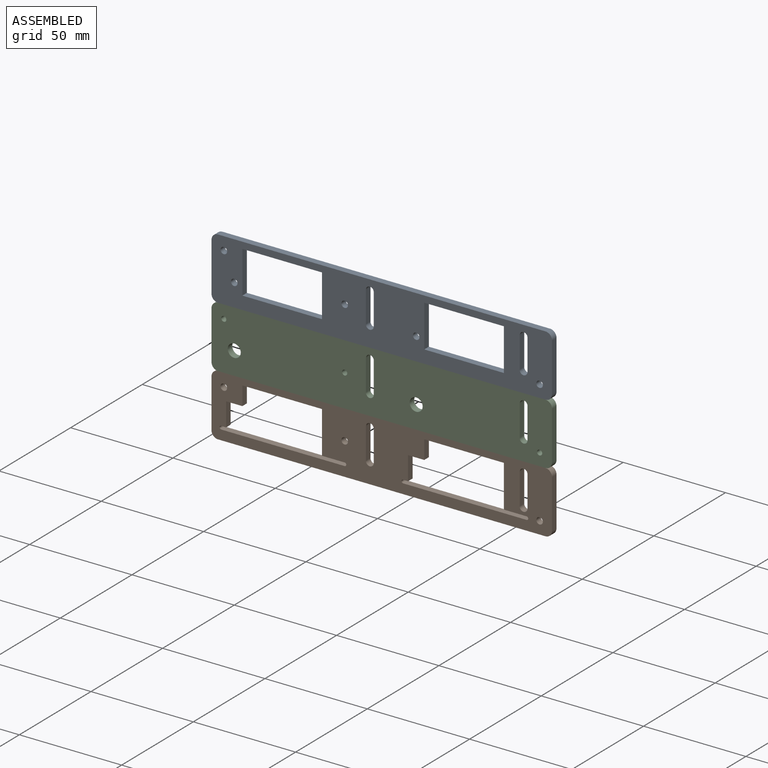
[diagram: assembled view]
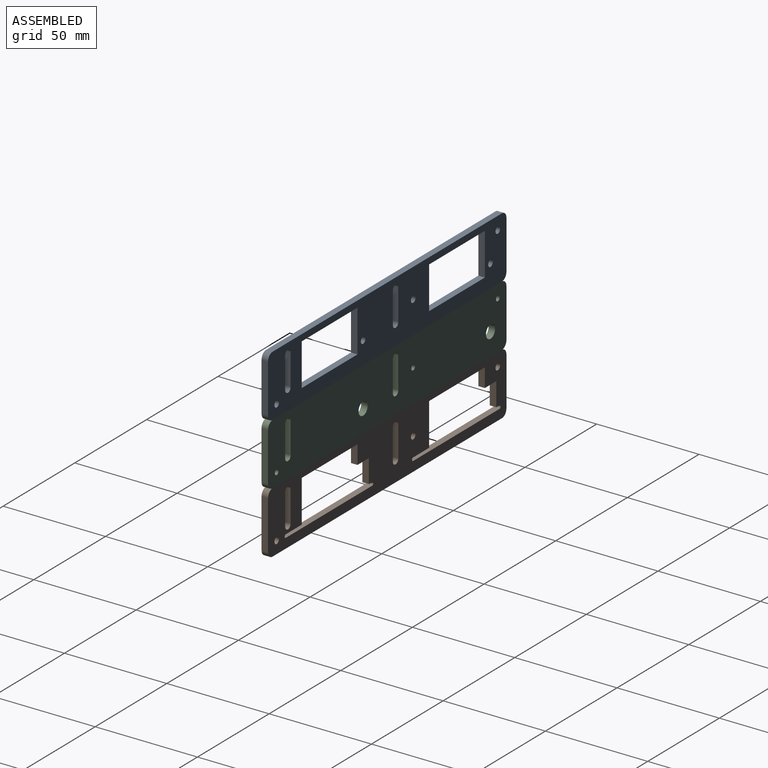
[diagram: assembled view, second angle]
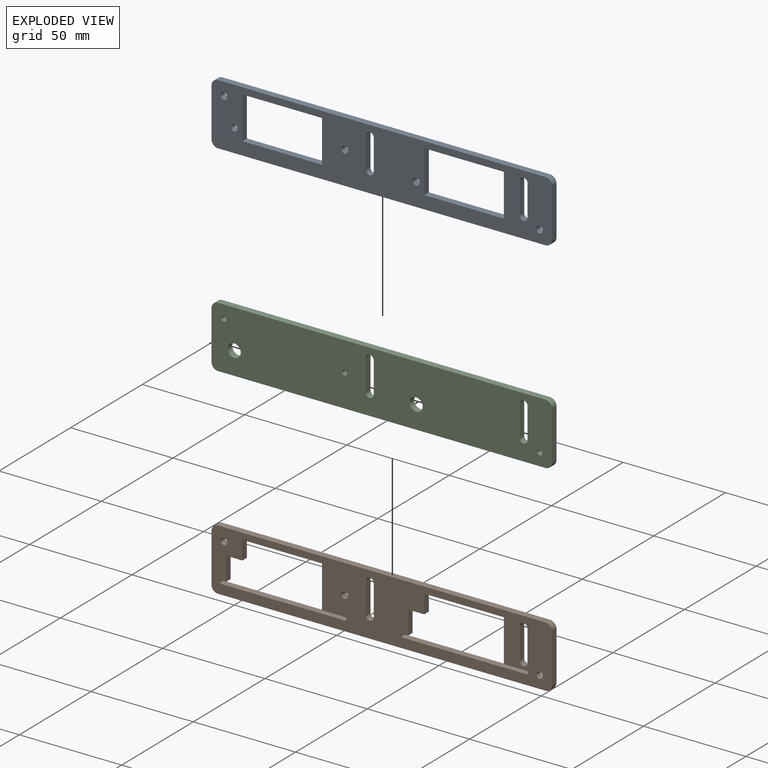
[diagram: exploded view]
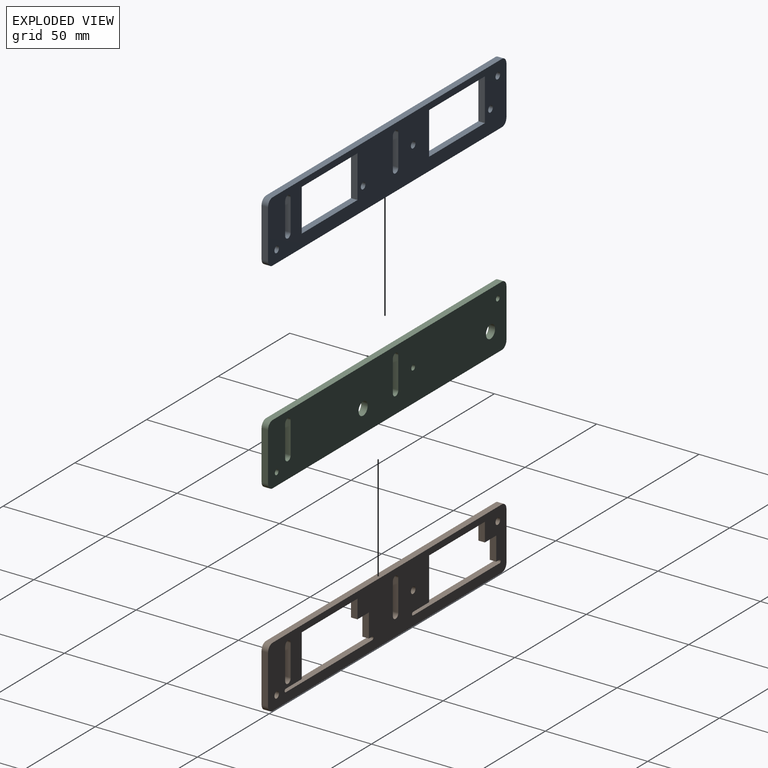
[diagram: exploded view, second angle]
ASSEMBLY  parts=3 mates=2
PART A: 31 faces, bbox 166.4x3.2x30.2 mm
  f0: cylinder r=3.17mm len=3.18mm, axis (0,1,0), area 15.8mm2, adj f1,f28,f29,f30
  f1: plane 160.01x3.18mm, normal (0,0,-1), area 508mm2, adj f0,f2,f29,f30
  f2: cylinder r=3.17mm len=3.18mm, axis (0,1,0), area 15.8mm2, adj f1,f3,f29,f30
  f3: plane 23.81x3.18mm, normal (1,0,0), area 75.6mm2, adj f2,f4,f29,f30
  f4: cylinder r=3.17mm len=3.18mm, axis (0,1,0), area 15.8mm2, adj f3,f5,f29,f30
  f5: plane 160.01x3.18mm, normal (0,0,1), area 508mm2, adj f4,f6,f29,f30
  f6: cylinder r=3.17mm len=3.18mm, axis (0,1,0), area 15.8mm2, adj f5,f28,f29,f30
  f7: cylinder r=1.91mm len=3.81mm, axis (0,1,0), area 19mm2, adj f8,f19,f29,f30
  f8: plane 15.24x3.18mm, normal (-1,0,0), area 48.4mm2, adj f7,f9,f29,f30
  f9: cylinder r=1.91mm len=3.81mm, axis (0,1,0), area 19mm2, adj f8,f19,f29,f30
  f10: plane 38.89x3.18mm, normal (0,0,-1), area 123.5mm2, adj f11,f20,f29,f30
  f11: plane 20.64x3.18mm, normal (-1,0,0), area 65.5mm2, adj f10,f12,f29,f30
  f12: plane 38.89x3.18mm, normal (0,0,1), area 123.5mm2, adj f11,f20,f29,f30
  f13: plane 20.64x3.18mm, normal (1,0,0), area 65.5mm2, adj f14,f21,f29,f30
  f14: plane 38.89x3.18mm, normal (0,0,-1), area 123.5mm2, adj f13,f15,f29,f30
  f15: plane 20.64x3.18mm, normal (-1,0,0), area 65.5mm2, adj f14,f21,f29,f30
  f16: cylinder r=1.91mm len=3.81mm, axis (0,1,0), area 19mm2, adj f17,f27,f29,f30
  f17: plane 15.24x3.18mm, normal (-1,0,0), area 48.4mm2, adj f16,f18,f29,f30
  f18: cylinder r=1.91mm len=3.81mm, axis (0,1,0), area 19mm2, adj f17,f27,f29,f30
  f19: plane 15.24x3.18mm, normal (1,0,0), area 48.4mm2, adj f7,f9,f29,f30
  f20: plane 20.64x3.18mm, normal (1,0,0), area 65.5mm2, adj f10,f12,f29,f30
  f21: plane 38.89x3.18mm, normal (0,0,1), area 123.5mm2, adj f13,f15,f29,f30
  f22: cylinder r=1.59mm len=3.18mm, axis (0,1,0), area 31.7mm2, adj f29,f30
  f23: cylinder r=1.59mm len=3.18mm, axis (0,1,0), area 31.7mm2, adj f29,f30
  f24: cylinder r=1.59mm len=3.18mm, axis (0,1,0), area 31.7mm2, adj f29,f30
  f25: cylinder r=1.59mm len=3.18mm, axis (0,1,0), area 31.7mm2, adj f29,f30
  f26: cylinder r=1.59mm len=3.18mm, axis (0,1,0), area 31.7mm2, adj f29,f30
  f27: plane 15.24x3.18mm, normal (1,0,0), area 48.4mm2, adj f16,f18,f29,f30
  f28: plane 23.81x3.18mm, normal (-1,0,0), area 75.6mm2, adj f0,f6,f29,f30
  f29: plane 166.36x30.16mm, normal (0,-1,0), area 3225.4mm2, adj f0,f1,f2,f3,f4,f5,f6,f7
  f30: plane 166.36x30.16mm, normal (0,1,0), area 3225.4mm2, adj f0,f1,f2,f3,f4,f5,f6,f7
PART B: 41 faces, bbox 166.4x3.2x30.2 mm
  f0: cylinder r=3.17mm len=3.18mm, axis (0,1,0), area 15.8mm2, adj f1,f38,f39,f40
  f1: plane 160.01x3.18mm, normal (0,0,-1), area 508mm2, adj f0,f2,f39,f40
  f2: cylinder r=3.17mm len=3.18mm, axis (0,1,0), area 15.8mm2, adj f1,f3,f39,f40
  f3: plane 23.81x3.18mm, normal (1,0,0), area 75.6mm2, adj f2,f4,f39,f40
  f4: cylinder r=3.17mm len=3.18mm, axis (0,1,0), area 15.8mm2, adj f3,f5,f39,f40
  f5: plane 160.01x3.18mm, normal (0,0,1), area 508mm2, adj f4,f6,f39,f40
  f6: cylinder r=3.17mm len=3.18mm, axis (0,1,0), area 15.8mm2, adj f5,f38,f39,f40
  f7: cylinder r=1.91mm len=3.81mm, axis (0,1,0), area 19mm2, adj f8,f31,f39,f40
  f8: plane 15.24x3.18mm, normal (-1,0,0), area 48.4mm2, adj f7,f9,f39,f40
  f9: cylinder r=1.91mm len=3.81mm, axis (0,1,0), area 19mm2, adj f8,f31,f39,f40
  f10: plane 11.52x3.18mm, normal (1,0,0), area 36.6mm2, adj f11,f32,f39,f40
  f11: plane 7.94x3.18mm, normal (0,0,-1), area 25.2mm2, adj f10,f12,f39,f40
  f12: plane 9.12x3.18mm, normal (1,0,0), area 29mm2, adj f11,f13,f39,f40
  f13: plane 38.89x3.18mm, normal (0,0,-1), area 123.5mm2, adj f12,f14,f39,f40
  f14: plane 20.64x3.18mm, normal (-1,0,0), area 65.5mm2, adj f13,f15,f39,f40
  f15: plane 11.11x3.18mm, normal (0,0,-1), area 35.3mm2, adj f14,f16,f39,f40
  f16: cylinder r=0.79mm len=3.18mm, axis (0,1,0), area 7.9mm2, adj f15,f17,f39,f40
  f17: plane 60.33x3.18mm, normal (0,0,1), area 191.5mm2, adj f16,f18,f39,f40
  f18: cylinder r=0.79mm len=3.18mm, axis (0,1,0), area 7.9mm2, adj f17,f32,f39,f40
  f19: plane 11.52x3.18mm, normal (1,0,0), area 36.6mm2, adj f20,f33,f39,f40
  f20: plane 7.94x3.18mm, normal (0,0,-1), area 25.2mm2, adj f19,f21,f39,f40
  f21: plane 9.12x3.18mm, normal (1,0,0), area 29mm2, adj f20,f22,f39,f40
  f22: plane 38.89x3.18mm, normal (0,0,-1), area 123.5mm2, adj f21,f23,f39,f40
  f23: plane 20.64x3.18mm, normal (-1,0,0), area 65.5mm2, adj f22,f24,f39,f40
  f24: plane 11.11x3.18mm, normal (0,0,-1), area 35.3mm2, adj f23,f25,f39,f40
  f25: cylinder r=0.79mm len=3.18mm, axis (0,1,0), area 7.9mm2, adj f24,f26,f39,f40
  f26: plane 60.33x3.18mm, normal (0,0,1), area 191.5mm2, adj f25,f27,f39,f40
  f27: cylinder r=0.79mm len=3.18mm, axis (0,1,0), area 7.9mm2, adj f26,f33,f39,f40
  f28: cylinder r=1.91mm len=3.81mm, axis (0,1,0), area 19mm2, adj f29,f37,f39,f40
  f29: plane 15.24x3.18mm, normal (-1,0,0), area 48.4mm2, adj f28,f30,f39,f40
  f30: cylinder r=1.91mm len=3.81mm, axis (0,1,0), area 19mm2, adj f29,f37,f39,f40
  f31: plane 15.24x3.18mm, normal (1,0,0), area 48.4mm2, adj f7,f9,f39,f40
  f32: plane 3.18x2.38mm, normal (0,0,-1), area 7.6mm2, adj f10,f18,f39,f40
  f33: plane 3.18x2.38mm, normal (0,0,-1), area 7.6mm2, adj f19,f27,f39,f40
  f34: cylinder r=1.59mm len=3.18mm, axis (0,1,0), area 31.7mm2, adj f39,f40
  f35: cylinder r=1.59mm len=3.18mm, axis (0,1,0), area 31.7mm2, adj f39,f40
  f36: cylinder r=1.59mm len=3.18mm, axis (0,1,0), area 31.7mm2, adj f39,f40
  f37: plane 15.24x3.18mm, normal (1,0,0), area 48.4mm2, adj f28,f30,f39,f40
  f38: plane 23.81x3.18mm, normal (-1,0,0), area 75.6mm2, adj f0,f6,f39,f40
  f39: plane 166.36x30.16mm, normal (0,-1,0), area 2862.9mm2, adj f0,f1,f2,f3,f4,f5,f6,f7
  f40: plane 166.36x30.16mm, normal (0,1,0), area 2862.9mm2, adj f0,f1,f2,f3,f4,f5,f6,f7
PART C: 23 faces, bbox 166.4x3.2x30.2 mm
  f0: plane 160.01x3.18mm, normal (0,0,-1), area 508mm2, adj f1,f20,f21,f22
  f1: cylinder r=3.17mm len=3.18mm, axis (0,-1,0), area 15.8mm2, adj f0,f2,f21,f22
  f2: plane 23.81x3.18mm, normal (1,0,0), area 75.6mm2, adj f1,f3,f21,f22
  f3: cylinder r=3.17mm len=3.18mm, axis (0,-1,0), area 15.8mm2, adj f2,f4,f21,f22
  f4: plane 160.01x3.18mm, normal (0,0,1), area 508mm2, adj f3,f5,f21,f22
  f5: cylinder r=3.17mm len=3.18mm, axis (0,-1,0), area 15.8mm2, adj f4,f6,f21,f22
  f6: plane 23.81x3.18mm, normal (-1,0,0), area 75.6mm2, adj f5,f20,f21,f22
  f7: cylinder r=1.91mm len=3.81mm, axis (0,-1,0), area 19mm2, adj f8,f18,f21,f22
  f8: plane 15.24x3.18mm, normal (-1,0,0), area 48.4mm2, adj f7,f9,f21,f22
  f9: cylinder r=1.91mm len=3.81mm, axis (0,-1,0), area 19mm2, adj f8,f18,f21,f22
  f10: cylinder r=1.91mm len=3.81mm, axis (0,-1,0), area 19mm2, adj f11,f19,f21,f22
  f11: plane 15.24x3.18mm, normal (-1,0,0), area 48.4mm2, adj f10,f12,f21,f22
  f12: cylinder r=1.91mm len=3.81mm, axis (0,-1,0), area 19mm2, adj f11,f19,f21,f22
  f13: cylinder r=3.17mm len=6.35mm, axis (0,-1,0), area 63.3mm2, adj f21,f22
  f14: cylinder r=1.27mm len=3.18mm, axis (0,-1,0), area 25.3mm2, adj f21,f22
  f15: cylinder r=1.27mm len=3.18mm, axis (0,-1,0), area 25.3mm2, adj f21,f22
  f16: cylinder r=1.27mm len=3.18mm, axis (0,-1,0), area 25.3mm2, adj f21,f22
  f17: cylinder r=3.17mm len=6.35mm, axis (0,-1,0), area 63.3mm2, adj f21,f22
  f18: plane 15.24x3.18mm, normal (1,0,0), area 48.4mm2, adj f7,f9,f21,f22
  f19: plane 15.24x3.18mm, normal (1,0,0), area 48.4mm2, adj f10,f12,f21,f22
  f20: cylinder r=3.17mm len=3.18mm, axis (0,-1,0), area 15.8mm2, adj f0,f6,f21,f22
  f21: plane 166.36x30.16mm, normal (0,1,0), area 4791.8mm2, adj f0,f1,f2,f3,f4,f5,f6,f7
  f22: plane 166.36x30.16mm, normal (0,-1,0), area 4791.8mm2, adj f0,f1,f2,f3,f4,f5,f6,f7
PLACE A t=(0,3.18,30.16)mm
PLACE B t=(0,6.35,-30.16)mm
PLACE C at identity fixed
MATE fastened A.f1 <-> C.f4  axis (0,0,-1) through (72.07,1.59,19.05)mm
MATE fastened B.f5 <-> C.f0  axis (0,0,1) through (72.07,1.59,-11.11)mm
